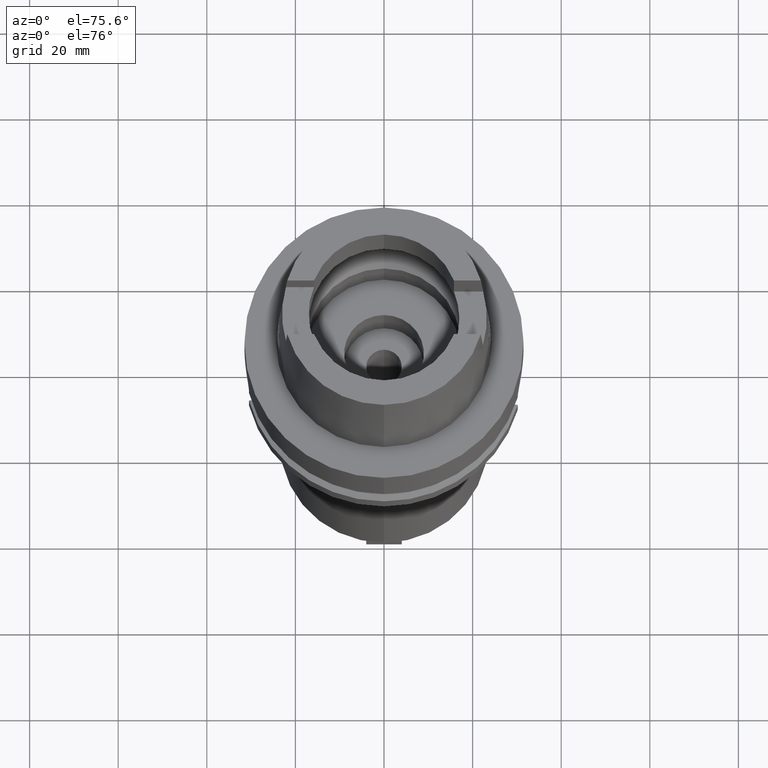
[diagram: clean part render]
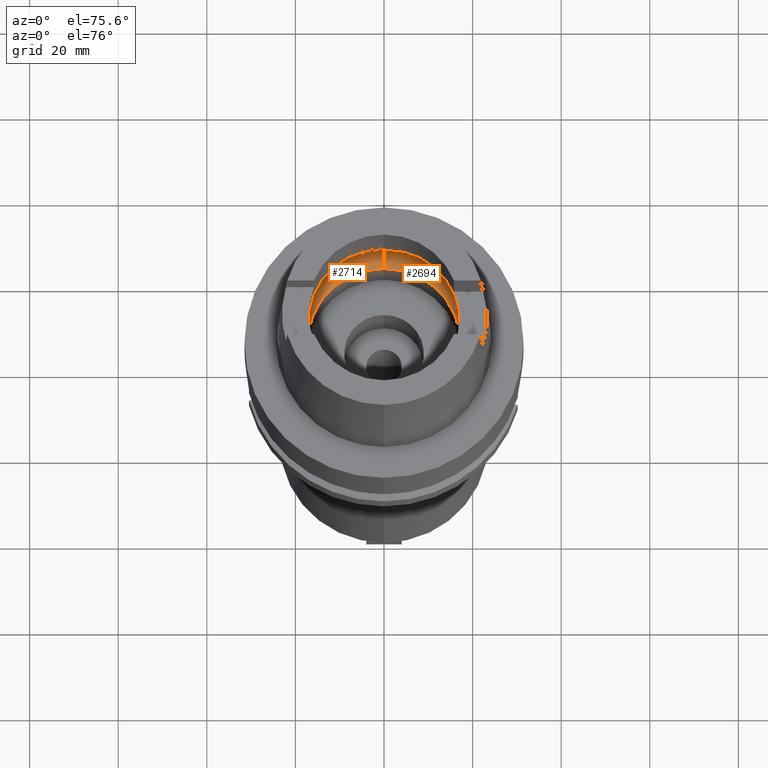
[diagram: same view with one multi-face feature highlighted, each face labeled with its STEP entity id]
A machine part, auxiliary view. The highlighted faces form ONE feature: a constant-radius fillet chain: 2 tangent blend faces with common blend radius 8 mm. The faces share edges in the B-rep.
Their STEP definitions:
[1] entity #2714 (Torus):
#261=CARTESIAN_POINT('',(0.E0,1.2E1,6.186348233825E0));
#262=DIRECTION('',(1.E0,0.E0,0.E0));
#263=DIRECTION('',(0.E0,6.5625E-1,-7.545435292281E-1));
#264=AXIS2_PLACEMENT_3D('',#261,#262,#263);
#287=CARTESIAN_POINT('',(-1.984575864666E1,-2.479085262491E0,6.186348233825E0));
#288=CARTESIAN_POINT('',(-1.987369497072E1,-2.255447312915E0,5.989302689102E0));
#289=CARTESIAN_POINT('',(-1.991331408374E1,-1.759163626983E0,5.647077637436E0));
#290=CARTESIAN_POINT('',(-1.994018532047E1,-9.061108224245E-1,
5.323312022695E0));
#291=CARTESIAN_POINT('',(-1.994501428476E1,-3.023235851956E-1,5.25E0));
#292=CARTESIAN_POINT('',(-1.994501428476E1,0.E0,5.25E0));
#297=CARTESIAN_POINT('',(-1.994501428476E1,0.E0,5.25E0));
#298=CARTESIAN_POINT('',(-1.994501428476E1,3.023270569563E-1,5.25E0));
#299=CARTESIAN_POINT('',(-1.994018514188E1,9.061184576584E-1,5.323314456528E0));
#300=CARTESIAN_POINT('',(-1.991331422538E1,1.759158738219E0,5.647075783597E0));
#301=CARTESIAN_POINT('',(-1.987369518365E1,2.255445608407E0,5.989301187274E0));
#302=CARTESIAN_POINT('',(-1.984575864666E1,2.479085262491E0,6.186348233825E0));
#307=CARTESIAN_POINT('',(0.E0,1.300407714777E-14,6.186348233825E0));
#308=DIRECTION('',(0.E0,0.E0,-1.E0));
#309=DIRECTION('',(-9.922879323328E-1,1.239542631245E-1,0.E0));
#310=AXIS2_PLACEMENT_3D('',#307,#308,#309);
#315=CARTESIAN_POINT('',(0.E0,1.300407714777E-14,1.500000000001E-1));
#316=DIRECTION('',(0.E0,0.E0,1.E0));
#317=DIRECTION('',(0.E0,1.E0,0.E0));
#318=AXIS2_PLACEMENT_3D('',#315,#316,#317);
#323=CARTESIAN_POINT('',(0.E0,-1.2E1,6.186348233825E0));
#324=DIRECTION('',(-1.E0,0.E0,0.E0));
#325=DIRECTION('',(0.E0,-6.5625E-1,-7.545435292281E-1));
#326=AXIS2_PLACEMENT_3D('',#323,#324,#325);
#331=CARTESIAN_POINT('',(0.E0,1.300407714777E-14,6.186348233825E0));
#332=DIRECTION('',(0.E0,0.E0,-1.E0));
#333=DIRECTION('',(0.E0,-1.E0,0.E0));
#334=AXIS2_PLACEMENT_3D('',#331,#332,#333);
#357=CARTESIAN_POINT('',(-1.984575864666E1,-2.479085262491E0,6.186348233825E0));
#2202=CARTESIAN_POINT('',(0.E0,2.E1,6.186348233825E0));
#2203=VERTEX_POINT('',#2202);
#2204=CARTESIAN_POINT('',(0.E0,-2.E1,6.186348233825E0));
#2205=VERTEX_POINT('',#2204);
#2211=VERTEX_POINT('',#357);
#2215=CARTESIAN_POINT('',(-1.994501428476E1,0.E0,5.25E0));
#2216=VERTEX_POINT('',#2215);
#2217=CARTESIAN_POINT('',(0.E0,-1.725E1,1.500000000001E-1));
#2218=VERTEX_POINT('',#2217);
#2219=CARTESIAN_POINT('',(0.E0,1.725E1,1.500000000001E-1));
#2220=VERTEX_POINT('',#2219);
#2221=VERTEX_POINT('',#302);
#2695=CARTESIAN_POINT('',(0.E0,1.300407714777E-14,6.186348233825E0));
#2696=DIRECTION('',(0.E0,0.E0,-1.E0));
#2697=DIRECTION('',(0.E0,-1.E0,0.E0));
#2698=AXIS2_PLACEMENT_3D('',#2695,#2696,#2697);
#2699=TOROIDAL_SURFACE('',#2698,1.2E1,8.E0);
#2701=ORIENTED_EDGE('',*,*,#2700,.T.);
#2703=ORIENTED_EDGE('',*,*,#2702,.T.);
#2705=ORIENTED_EDGE('',*,*,#2704,.T.);
#2706=ORIENTED_EDGE('',*,*,#2687,.F.);
#2708=ORIENTED_EDGE('',*,*,#2707,.T.);
#2709=ORIENTED_EDGE('',*,*,#2683,.T.);
#2711=ORIENTED_EDGE('',*,*,#2710,.T.);
#2712=EDGE_LOOP('',(#2701,#2703,#2705,#2706,#2708,#2709,#2711));
#2713=FACE_OUTER_BOUND('',#2712,.F.);
#265=CIRCLE('',#264,8.E0);
#293=B_SPLINE_CURVE_WITH_KNOTS('',3,(#287,#288,#289,#290,#291,#292),
.UNSPECIFIED.,.F.,.F.,(4,1,1,4),(0.E0,3.333333333333E-1,6.666666666667E-1,1.E0),
.UNSPECIFIED.);
#303=B_SPLINE_CURVE_WITH_KNOTS('',3,(#297,#298,#299,#300,#301,#302),
.UNSPECIFIED.,.F.,.F.,(4,1,1,4),(0.E0,3.333333333333E-1,6.666666666667E-1,1.E0),
.UNSPECIFIED.);
#311=CIRCLE('',#310,2.E1);
#319=CIRCLE('',#318,1.725E1);
#327=CIRCLE('',#326,8.E0);
#335=CIRCLE('',#334,2.E1);
#2683=EDGE_CURVE('',#2218,#2205,#327,.T.);
#2687=EDGE_CURVE('',#2220,#2203,#265,.T.);
#2700=EDGE_CURVE('',#2211,#2216,#293,.T.);
#2702=EDGE_CURVE('',#2216,#2221,#303,.T.);
#2704=EDGE_CURVE('',#2221,#2203,#311,.T.);
#2707=EDGE_CURVE('',#2220,#2218,#319,.T.);
#2710=EDGE_CURVE('',#2205,#2211,#335,.T.);
#2714=ADVANCED_FACE('',(#2713),#2699,.F.);
[2] entity #2694 (Torus):
#189=CARTESIAN_POINT('',(1.984575864666E1,-2.479085262490E0,6.186348233825E0));
#216=CARTESIAN_POINT('',(1.984575864666E1,2.479085262491E0,6.186348233825E0));
#235=CARTESIAN_POINT('',(1.994501428476E1,0.E0,5.25E0));
#236=CARTESIAN_POINT('',(1.994501428476E1,-3.023279152510E-1,5.25E0));
#237=CARTESIAN_POINT('',(1.994018516759E1,-9.061207638300E-1,5.323314268873E0));
#238=CARTESIAN_POINT('',(1.991331369155E1,-1.759170242776E0,5.647081582270E0));
#239=CARTESIAN_POINT('',(1.987369466821E1,-2.255449734637E0,5.989304822862E0));
#240=CARTESIAN_POINT('',(1.984575864666E1,-2.479085262490E0,6.186348233825E0));
#245=CARTESIAN_POINT('',(0.E0,1.300407714777E-14,6.186348233825E0));
#246=DIRECTION('',(0.E0,0.E0,-1.E0));
#247=DIRECTION('',(9.922879323328E-1,-1.239542631245E-1,0.E0));
#248=AXIS2_PLACEMENT_3D('',#245,#246,#247);
#253=CARTESIAN_POINT('',(0.E0,1.300407714777E-14,1.500000000001E-1));
#254=DIRECTION('',(0.E0,0.E0,1.E0));
#255=DIRECTION('',(0.E0,-1.E0,0.E0));
#256=AXIS2_PLACEMENT_3D('',#253,#254,#255);
#261=CARTESIAN_POINT('',(0.E0,1.2E1,6.186348233825E0));
#262=DIRECTION('',(1.E0,0.E0,0.E0));
#263=DIRECTION('',(0.E0,6.5625E-1,-7.545435292281E-1));
#264=AXIS2_PLACEMENT_3D('',#261,#262,#263);
#269=CARTESIAN_POINT('',(0.E0,1.300407714777E-14,6.186348233825E0));
#270=DIRECTION('',(0.E0,0.E0,-1.E0));
#271=DIRECTION('',(0.E0,1.E0,0.E0));
#272=AXIS2_PLACEMENT_3D('',#269,#270,#271);
#277=CARTESIAN_POINT('',(1.984575864666E1,2.479085262491E0,6.186348233825E0));
#278=CARTESIAN_POINT('',(1.987369548347E1,2.255443208242E0,5.989299072509E0));
#279=CARTESIAN_POINT('',(1.991331461444E1,1.759152181903E0,5.647071871532E0));
#280=CARTESIAN_POINT('',(1.994018529417E1,9.061085671609E-1,5.323312220038E0));
#281=CARTESIAN_POINT('',(1.994501428476E1,3.023227486984E-1,5.25E0));
#282=CARTESIAN_POINT('',(1.994501428476E1,0.E0,5.25E0));
#323=CARTESIAN_POINT('',(0.E0,-1.2E1,6.186348233825E0));
#324=DIRECTION('',(-1.E0,0.E0,0.E0));
#325=DIRECTION('',(0.E0,-6.5625E-1,-7.545435292281E-1));
#326=AXIS2_PLACEMENT_3D('',#323,#324,#325);
#2199=VERTEX_POINT('',#189);
#2201=VERTEX_POINT('',#216);
#2202=CARTESIAN_POINT('',(0.E0,2.E1,6.186348233825E0));
#2203=VERTEX_POINT('',#2202);
#2204=CARTESIAN_POINT('',(0.E0,-2.E1,6.186348233825E0));
#2205=VERTEX_POINT('',#2204);
#2206=VERTEX_POINT('',#235);
#2217=CARTESIAN_POINT('',(0.E0,-1.725E1,1.500000000001E-1));
#2218=VERTEX_POINT('',#2217);
#2219=CARTESIAN_POINT('',(0.E0,1.725E1,1.500000000001E-1));
#2220=VERTEX_POINT('',#2219);
#2676=CARTESIAN_POINT('',(0.E0,1.300407714777E-14,6.186348233825E0));
#2677=DIRECTION('',(0.E0,0.E0,-1.E0));
#2678=DIRECTION('',(0.E0,-1.E0,0.E0));
#2679=AXIS2_PLACEMENT_3D('',#2676,#2677,#2678);
#2680=TOROIDAL_SURFACE('',#2679,1.2E1,8.E0);
#2681=ORIENTED_EDGE('',*,*,#2665,.T.);
#2682=ORIENTED_EDGE('',*,*,#2654,.T.);
#2684=ORIENTED_EDGE('',*,*,#2683,.F.);
#2686=ORIENTED_EDGE('',*,*,#2685,.T.);
#2688=ORIENTED_EDGE('',*,*,#2687,.T.);
#2689=ORIENTED_EDGE('',*,*,#2647,.T.);
#2691=ORIENTED_EDGE('',*,*,#2690,.T.);
#2692=EDGE_LOOP('',(#2681,#2682,#2684,#2686,#2688,#2689,#2691));
#2693=FACE_OUTER_BOUND('',#2692,.F.);
#241=B_SPLINE_CURVE_WITH_KNOTS('',3,(#235,#236,#237,#238,#239,#240),
.UNSPECIFIED.,.F.,.F.,(4,1,1,4),(0.E0,3.333333333333E-1,6.666666666667E-1,1.E0),
.UNSPECIFIED.);
#249=CIRCLE('',#248,2.E1);
#257=CIRCLE('',#256,1.725E1);
#265=CIRCLE('',#264,8.E0);
#273=CIRCLE('',#272,2.E1);
#283=B_SPLINE_CURVE_WITH_KNOTS('',3,(#277,#278,#279,#280,#281,#282),
.UNSPECIFIED.,.F.,.F.,(4,1,1,4),(0.E0,3.333333333333E-1,6.666666666667E-1,1.E0),
.UNSPECIFIED.);
#327=CIRCLE('',#326,8.E0);
#2647=EDGE_CURVE('',#2203,#2201,#273,.T.);
#2654=EDGE_CURVE('',#2199,#2205,#249,.T.);
#2665=EDGE_CURVE('',#2206,#2199,#241,.T.);
#2683=EDGE_CURVE('',#2218,#2205,#327,.T.);
#2685=EDGE_CURVE('',#2218,#2220,#257,.T.);
#2687=EDGE_CURVE('',#2220,#2203,#265,.T.);
#2690=EDGE_CURVE('',#2201,#2206,#283,.T.);
#2694=ADVANCED_FACE('',(#2693),#2680,.F.);